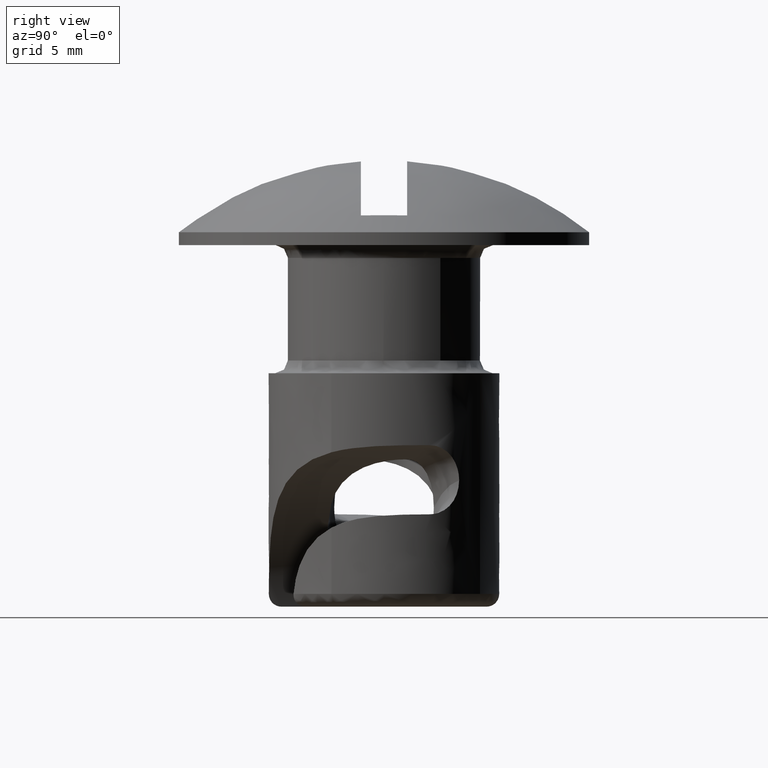
[diagram: clean part render]
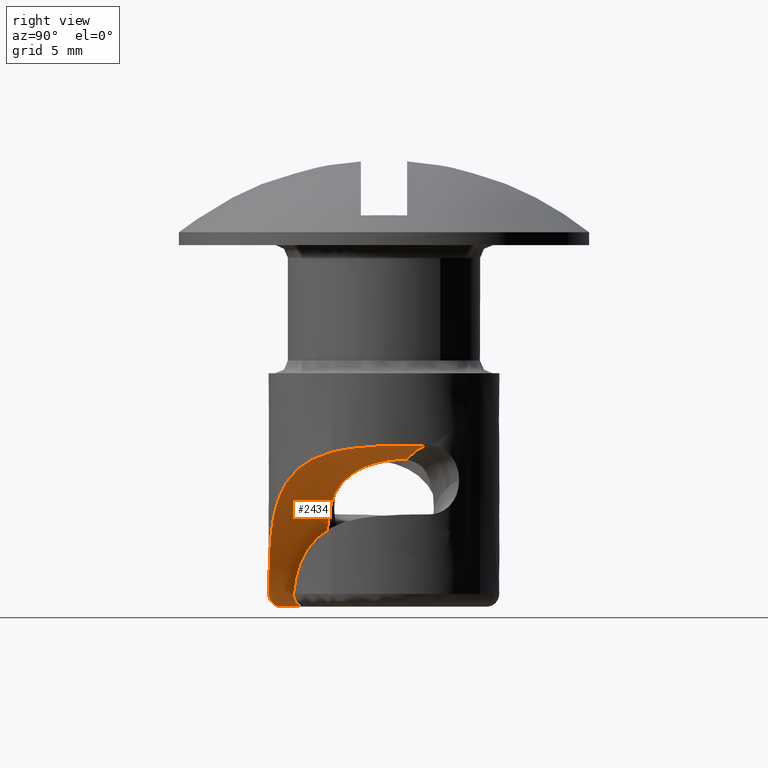
[diagram: same view with one face highlighted and labeled with its STEP entity id]
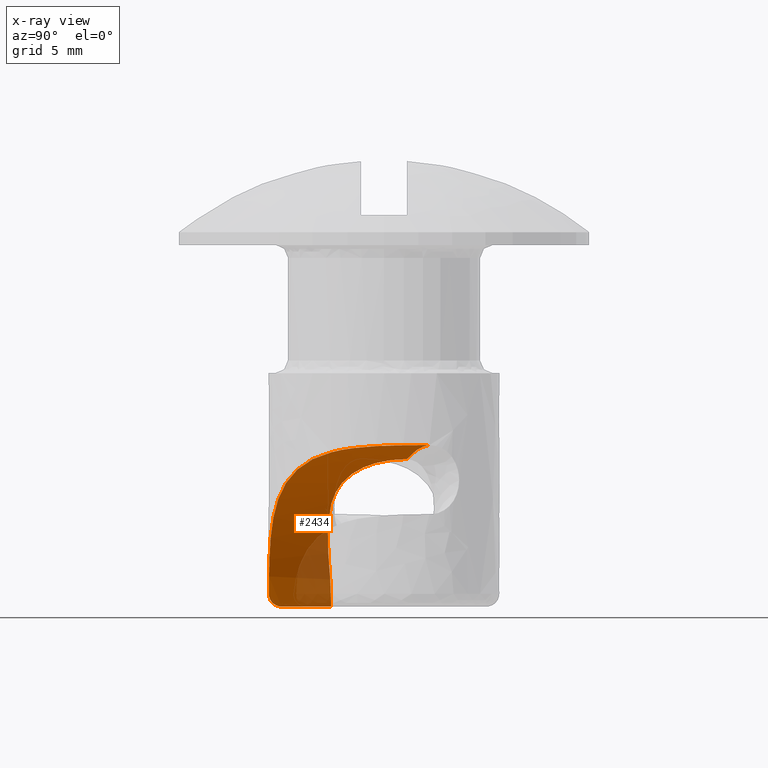
[diagram: x-ray of the same camera — body ghosted, the highlighted face saturated]
A machine part, right view. The second image highlights one B-rep face of the part: STEP entity #2434.
The next image is the same camera in x-ray: the body ghosted, the highlighted face saturated — about 20% of this face is hidden behind the body in this view.
In plain terms, the highlighted face is a freeform B-spline surface patch.
Its self-contained STEP definition (entity closure, byte-faithful):
#208=CARTESIAN_POINT('',(2.012875800871520,0.887880065248593,-8.353733664145489));
#209=VERTEX_POINT('',#208);
#241=CARTESIAN_POINT('',(1.471700788990504,-1.635285459659126,-9.278926757291547));
#242=VERTEX_POINT('',#241);
#243=CARTESIAN_POINT('',(1.471700788990504,-1.635285459659126,-9.278926757291547));
#244=CARTESIAN_POINT('',(1.529172544146371,-1.583571100679164,-9.217397976464371));
#245=CARTESIAN_POINT('',(1.585414679814820,-1.527450190644373,-9.158237553011825));
#246=CARTESIAN_POINT('',(1.664419956222351,-1.439095353031215,-9.075992662763900));
#247=CARTESIAN_POINT('',(1.688580509911740,-1.410692847844107,-9.050959814135146));
#248=CARTESIAN_POINT('',(1.735777052602418,-1.352197667999754,-9.002187476025389));
#249=CARTESIAN_POINT('',(1.758772939437098,-1.322163852563907,-8.978488599925665));
#250=CARTESIAN_POINT('',(1.825832819073200,-1.229669864629749,-8.909393111134847));
#251=CARTESIAN_POINT('',(1.867974572773827,-1.164821801354222,-8.865995460104038));
#252=CARTESIAN_POINT('',(1.946375328976329,-1.028477770864486,-8.784258393606514));
#253=CARTESIAN_POINT('',(1.982637813875718,-0.956984213985253,-8.745918431831083));
#254=CARTESIAN_POINT('',(2.031895065481118,-0.844420045177230,-8.692053360868712));
#255=CARTESIAN_POINT('',(2.047499983273391,-0.805876733850665,-8.674654137087435));
#256=CARTESIAN_POINT('',(2.076474099998848,-0.727977478810443,-8.641484473398760));
#257=CARTESIAN_POINT('',(2.089883260889936,-0.688550148506075,-8.625672722790990));
#258=CARTESIAN_POINT('',(2.151435764325225,-0.489072107158115,-8.550260327677805));
#259=CARTESIAN_POINT('',(2.183303103526015,-0.322086022917547,-8.501457459199820));
#260=CARTESIAN_POINT('',(2.197970883556443,-0.104020667407514,-8.452766255409308));
#261=CARTESIAN_POINT('',(2.199620608824777,-0.059871782729582,-8.443646865524995));
#262=CARTESIAN_POINT('',(2.200258016536838,0.027963826414833,-8.426893265857505));
#263=CARTESIAN_POINT('',(2.199262174102160,0.071821189809136,-8.419218242405764));
#264=CARTESIAN_POINT('',(2.192349142983452,0.203197816940557,-8.398174694894033));
#265=CARTESIAN_POINT('',(2.182520089598943,0.290521650997582,-8.386775886985705));
#266=CARTESIAN_POINT('',(2.159780870260663,0.421061451361819,-8.373349228057119));
#267=CARTESIAN_POINT('',(2.150865217869949,0.464500397869820,-8.369488561010494));
#268=CARTESIAN_POINT('',(2.130290875912602,0.551220186291751,-8.362987837784029));
#269=CARTESIAN_POINT('',(2.118578286018459,0.594668322137716,-8.360341314076239));
#270=CARTESIAN_POINT('',(2.079632174586845,0.723295451250563,-8.354318147241916));
#271=CARTESIAN_POINT('',(2.048676404667724,0.806717745670286,-8.352820920707234));
#272=CARTESIAN_POINT('',(2.012875800871520,0.887880065248593,-8.353733664145489));
#273=B_SPLINE_CURVE_WITH_KNOTS('',3,(#243,#244,#245,#246,#247,#248,#249,#250,#251,#252,#253,#254,#255,#256,#257,#258,#259,#260,#261,#262,#263,#264,#265,#266,#267,#268,#269,#270,#271,#272),.UNSPECIFIED.,.F.,.U.,(4,2,2,2,2,2,2,2,2,2,2,2,2,2,4),(0.652609904326967,0.687500000000002,0.703125000000003,0.718750000000003,0.750000000000003,0.781250000000003,0.796875000000002,0.812500000000002,0.875000000000002,0.890625000000001,0.906250000000001,0.937500000000001,0.953125000000001,0.968750000000000,1.0),.UNSPECIFIED.);
#274=EDGE_CURVE('',#242,#209,#273,.T.);
#377=CARTESIAN_POINT('',(-0.772819371805389,-2.059793732042685,-14.100000000000000));
#378=VERTEX_POINT('',#377);
#379=CARTESIAN_POINT('',(-0.772819371805389,-2.059793732042685,-14.100000000000000));
#380=CARTESIAN_POINT('',(-0.773075505397063,-2.059697423639558,-13.921352947093339));
#381=CARTESIAN_POINT('',(-0.763578330655057,-2.063331586259701,-13.744455376049419));
#382=CARTESIAN_POINT('',(-0.726374994902370,-2.076720145993557,-13.393884926041579));
#383=CARTESIAN_POINT('',(-0.698679166027948,-2.086450178496178,-13.220209190242009));
#384=CARTESIAN_POINT('',(-0.626519930513565,-2.109240945028564,-12.875713825805610));
#385=CARTESIAN_POINT('',(-0.582064766943404,-2.122283022144758,-12.704891956374491));
#386=CARTESIAN_POINT('',(-0.503760624189162,-2.141713783230250,-12.450518688988870));
#387=CARTESIAN_POINT('',(-0.475762429383641,-2.148150909104996,-12.366201162164700));
#388=CARTESIAN_POINT('',(-0.416568896260025,-2.160409896654604,-12.199526399267301));
#389=CARTESIAN_POINT('',(-0.385323989356559,-2.166244420746490,-12.117004680081710));
#390=CARTESIAN_POINT('',(-0.221389719056922,-2.192856837554924,-11.708202007850289));
#391=CARTESIAN_POINT('',(-0.065845619766091,-2.206029976062915,-11.393203208101561));
#392=CARTESIAN_POINT('',(0.197615124121947,-2.192863372551909,-10.935399302547800));
#393=CARTESIAN_POINT('',(0.290515027980192,-2.182983875816730,-10.785274601932811));
#394=CARTESIAN_POINT('',(0.437052185071691,-2.156713035662069,-10.563561747283259));
#395=CARTESIAN_POINT('',(0.487135580074479,-2.146017352560329,-10.490198603189700));
#396=CARTESIAN_POINT('',(0.588460066530070,-2.120472475218050,-10.346227076551520));
#397=CARTESIAN_POINT('',(0.639831194594699,-2.105604653153069,-10.275417161712831));
#398=CARTESIAN_POINT('',(0.795742999457914,-2.053956143172463,-10.066491535652411));
#399=CARTESIAN_POINT('',(0.902099264614666,-2.010194728986966,-9.931873748106808));
#400=CARTESIAN_POINT('',(1.063755421558852,-1.926668090550900,-9.736965720342360));
#401=CARTESIAN_POINT('',(1.118172915861983,-1.895714352265225,-9.672959913737182));
#402=CARTESIAN_POINT('',(1.226512966952972,-1.827486550084317,-9.548313195552531));
#403=CARTESIAN_POINT('',(1.280204104351139,-1.790377983246796,-9.487927379754893));
#404=CARTESIAN_POINT('',(1.379972122486129,-1.714373944384882,-9.377790151345298));
#405=CARTESIAN_POINT('',(1.426221462569798,-1.676209434791188,-9.327616900418526));
#406=CARTESIAN_POINT('',(1.471700788990504,-1.635285459659126,-9.278926757291547));
#407=B_SPLINE_CURVE_WITH_KNOTS('',3,(#379,#380,#381,#382,#383,#384,#385,#386,#387,#388,#389,#390,#391,#392,#393,#394,#395,#396,#397,#398,#399,#400,#401,#402,#403,#404,#405,#406),.UNSPECIFIED.,.F.,.U.,(4,2,2,2,2,2,2,2,2,2,2,2,2,4),(0.0,0.062500000000000,0.125000000000000,0.187499999999999,0.218749999999999,0.249999999999999,0.375000000000000,0.437500000000001,0.468750000000001,0.500000000000001,0.562500000000002,0.593750000000002,0.625000000000002,0.652609904326967),.UNSPECIFIED.);
#408=EDGE_CURVE('',#378,#242,#407,.T.);
#846=CARTESIAN_POINT('',(0.255835677203739,-4.492721681371959,-13.600000000000000));
#847=VERTEX_POINT('',#846);
#872=CARTESIAN_POINT('',(4.005065075704186,-2.051709767937144,-8.080848835180767));
#873=VERTEX_POINT('',#872);
#874=CARTESIAN_POINT('',(4.005065075704186,-2.051709767937144,-8.080848835180767));
#875=CARTESIAN_POINT('',(3.943339355540231,-2.172208781201602,-8.113144947599663));
#876=CARTESIAN_POINT('',(3.876542370826476,-2.289181153341390,-8.149408258224693));
#877=CARTESIAN_POINT('',(3.773771376901418,-2.451937861394224,-8.208060667503840));
#878=CARTESIAN_POINT('',(3.741695343175940,-2.500609839679293,-8.226720857588580));
#879=CARTESIAN_POINT('',(3.675744947525495,-2.596581118429168,-8.265916995026952));
#880=CARTESIAN_POINT('',(3.641864980991648,-2.643873910733617,-8.286459740476293));
#881=CARTESIAN_POINT('',(3.538770415549995,-2.782134048143959,-8.350336632007910));
#882=CARTESIAN_POINT('',(3.467737265914015,-2.870035078895143,-8.396133672970134));
#883=CARTESIAN_POINT('',(3.248839571398713,-3.121604619710936,-8.543694264999784));
#884=CARTESIAN_POINT('',(3.095194099437456,-3.273169829738833,-8.655605958177473));
#885=CARTESIAN_POINT('',(2.896700616718432,-3.444100128095720,-8.814423055904461));
#886=CARTESIAN_POINT('',(2.856587742673387,-3.477429050449810,-8.847211210471825));
#887=CARTESIAN_POINT('',(2.776286225682399,-3.541869895429823,-8.914324379953532));
#888=CARTESIAN_POINT('',(2.736130112375454,-3.572962547576958,-8.948618277696250));
#889=CARTESIAN_POINT('',(2.615756672302458,-3.663034602393186,-9.053709037260873));
#890=CARTESIAN_POINT('',(2.535635646717832,-3.718812193067187,-9.126713711165653));
#891=CARTESIAN_POINT('',(2.296475984071499,-3.874579677697017,-9.354581395973836));
#892=CARTESIAN_POINT('',(2.138642329750929,-3.963041117565401,-9.518275420727813));
#893=CARTESIAN_POINT('',(1.830239302853755,-4.114573474593702,-9.869848756944384));
#894=CARTESIAN_POINT('',(1.682891326303015,-4.176098803264428,-10.054072329922700));
#895=CARTESIAN_POINT('',(1.404562251542712,-4.277748671648064,-10.438012680990550));
#896=CARTESIAN_POINT('',(1.273438638263735,-4.317898977433959,-10.637880422209530));
#897=CARTESIAN_POINT('',(1.090497488115368,-4.366323191419717,-10.949687591106780));
#898=CARTESIAN_POINT('',(1.031811792816200,-4.380486933386094,-11.055629422759591));
#899=CARTESIAN_POINT('',(0.947481651725769,-4.399215132236809,-11.217620172876110));
#900=CARTESIAN_POINT('',(0.919951313530347,-4.405044970076399,-11.272209270167410));
#901=CARTESIAN_POINT('',(0.866446264329112,-4.415880811777237,-11.381856358812080));
#902=CARTESIAN_POINT('',(0.840450842371826,-4.420892276616048,-11.436948809802560));
#903=CARTESIAN_POINT('',(0.714287179120226,-4.444132814048572,-11.713754857265361));
#904=CARTESIAN_POINT('',(0.625528656783643,-4.456968231853296,-11.939487092789889));
#905=CARTESIAN_POINT('',(0.473566844664832,-4.475666334806666,-12.399716138667410));
#906=CARTESIAN_POINT('',(0.410362471252333,-4.481523952832765,-12.634212825447900));
#907=CARTESIAN_POINT('',(0.336222206899970,-4.487490009593309,-12.992915315149791));
#908=CARTESIAN_POINT('',(0.314924133649345,-4.489001035225286,-13.113940256524771));
#909=CARTESIAN_POINT('',(0.279805756540586,-4.491326903679411,-13.356505117554610));
#910=CARTESIAN_POINT('',(0.265953237172448,-4.492145483999236,-13.478096946448190));
#911=CARTESIAN_POINT('',(0.255835677203739,-4.492721681371959,-13.600000000000000));
#912=B_SPLINE_CURVE_WITH_KNOTS('',3,(#874,#875,#876,#877,#878,#879,#880,#881,#882,#883,#884,#885,#886,#887,#888,#889,#890,#891,#892,#893,#894,#895,#896,#897,#898,#899,#900,#901,#902,#903,#904,#905,#906,#907,#908,#909,#910,#911),.UNSPECIFIED.,.F.,.U.,(4,2,2,2,2,2,2,2,2,2,2,2,2,2,2,2,2,2,4),(0.339093433662571,0.374999999999999,0.390624999999999,0.406249999999999,0.437499999999999,0.499999999999999,0.515624999999999,0.531250000000000,0.562500000000000,0.625000000000000,0.687500000000000,0.750000000000001,0.781250000000001,0.796875000000001,0.812500000000001,0.875000000000000,0.937500000000000,0.968750000000000,1.0),.UNSPECIFIED.);
#913=EDGE_CURVE('',#873,#847,#912,.T.);
#1049=CARTESIAN_POINT('',(4.138067084196240,1.768163116539770,-7.800013149771270));
#1050=VERTEX_POINT('',#1049);
#1051=CARTESIAN_POINT('',(4.138067084196240,1.768163116539770,-7.800013149771270));
#1052=CARTESIAN_POINT('',(4.162120505831297,1.711870290030843,-7.799980991914844));
#1053=CARTESIAN_POINT('',(4.185139341385479,1.654804921017770,-7.800007838458414));
#1054=CARTESIAN_POINT('',(4.228739625134359,1.539977521871081,-7.800182341454338));
#1055=CARTESIAN_POINT('',(4.249293395797664,1.482306279991001,-7.800329579954470));
#1056=CARTESIAN_POINT('',(4.307278926738934,1.308533232924721,-7.800964565079217));
#1057=CARTESIAN_POINT('',(4.341040957026205,1.191673301936562,-7.801641199656928));
#1058=CARTESIAN_POINT('',(4.427917570751848,0.838120500450025,-7.804699100119386));
#1059=CARTESIAN_POINT('',(4.466716551187616,0.598473039878350,-7.808030665249360));
#1060=CARTESIAN_POINT('',(4.495623733761330,0.232988338331622,-7.817356912755614));
#1061=CARTESIAN_POINT('',(4.500320295707747,0.109670295700120,-7.821231235918879));
#1062=CARTESIAN_POINT('',(4.499639845996462,-0.134713072586578,-7.830923161055225));
#1063=CARTESIAN_POINT('',(4.494332577423430,-0.256172360750283,-7.836744749770561));
#1064=CARTESIAN_POINT('',(4.463892699900193,-0.618331571634758,-7.858064590406930));
#1065=CARTESIAN_POINT('',(4.424323375524259,-0.856829638191402,-7.877340128359434));
#1066=CARTESIAN_POINT('',(4.350739805403135,-1.150955042263494,-7.911841597218941));
#1067=CARTESIAN_POINT('',(4.334810474915550,-1.209578925807845,-7.919268375028099));
#1068=CARTESIAN_POINT('',(4.300499466624118,-1.326410646241067,-7.935304502542285));
#1069=CARTESIAN_POINT('',(4.282110389520763,-1.384612564755397,-7.943917819138666));
#1070=CARTESIAN_POINT('',(4.223886130358204,-1.556730211478972,-7.971423513387567));
#1071=CARTESIAN_POINT('',(4.180822676332276,-1.668787720432518,-7.992061400041185));
#1072=CARTESIAN_POINT('',(4.093715385423663,-1.871285503581427,-8.035185844950028));
#1073=CARTESIAN_POINT('',(4.050781102924933,-1.962464871369194,-8.056929274875921));
#1074=CARTESIAN_POINT('',(4.005065075704186,-2.051709767937144,-8.080848835180767));
#1075=B_SPLINE_CURVE_WITH_KNOTS('',3,(#1051,#1052,#1053,#1054,#1055,#1056,#1057,#1058,#1059,#1060,#1061,#1062,#1063,#1064,#1065,#1066,#1067,#1068,#1069,#1070,#1071,#1072,#1073,#1074),.UNSPECIFIED.,.F.,.U.,(4,2,2,2,2,2,2,2,2,2,2,4),(0.0,0.015625000000000,0.031250000000000,0.062500000000000,0.124999999999999,0.156249999999999,0.187499999999999,0.249999999999999,0.265624999999999,0.281249999999999,0.312499999999999,0.339093433662571),.UNSPECIFIED.);
#1076=EDGE_CURVE('',#1050,#873,#1075,.T.);
#2222=CARTESIAN_POINT('',(2.012875800871520,0.887880065248593,-8.353733664145489));
#2223=CARTESIAN_POINT('',(2.294571029794645,1.004562049405136,-8.215671222974059));
#2224=CARTESIAN_POINT('',(2.986462081597823,1.291152706453845,-7.946211064409225));
#2225=CARTESIAN_POINT('',(3.714772772441481,1.592828871914565,-7.821618521696377));
#2226=CARTESIAN_POINT('',(4.138067084196240,1.768163116539770,-7.800013149771270));
#2227=B_SPLINE_CURVE_WITH_KNOTS('',3,(#2222,#2223,#2224,#2225,#2226),.UNSPECIFIED.,.F.,.U.,(4,1,4),(5.695773E-010,1.004117983389891,2.380130339962011),.UNSPECIFIED.);
#2228=EDGE_CURVE('',#209,#1050,#2227,.T.);
#2383=CARTESIAN_POINT('',(-1.448380718543344,-0.422721432751549,-14.264912258832670));
#2384=CARTESIAN_POINT('',(0.380617785603739,-4.838314431533074,-14.264912258832670));
#2385=CARTESIAN_POINT('',(-1.612888629168178,-0.490862840380424,-7.743501752850516));
#2386=CARTESIAN_POINT('',(0.216109874978906,-4.906455839161953,-7.743501752850516));
#2387=CARTESIAN_POINT('',(4.414180038795257,2.005630740694371,-7.793142088587252));
#2388=CARTESIAN_POINT('',(6.243178542942340,-2.409962258087159,-7.793142088587251));
#2396=(BOUNDED_SURFACE()B_SPLINE_SURFACE(1,2,((#2383,#2385,#2387),(#2384,#2386,#2388)),.UNSPECIFIED.,.F.,.F.,.U.)B_SPLINE_SURFACE_WITH_KNOTS((2,2),(3,3),(0.0,4.779403420832011),(0.0,10.696765368482041),.UNSPECIFIED.)GEOMETRIC_REPRESENTATION_ITEM()RATIONAL_B_SPLINE_SURFACE(((1.0,0.694658370458997,1.0),(1.0,0.694658370458997,1.0)))REPRESENTATION_ITEM('')SURFACE());
#2397=ORIENTED_EDGE('',*,*,#408,.T.);
#2398=ORIENTED_EDGE('',*,*,#274,.T.);
#2399=ORIENTED_EDGE('',*,*,#2228,.T.);
#2400=ORIENTED_EDGE('',*,*,#1076,.T.);
#2401=ORIENTED_EDGE('',*,*,#913,.T.);
#2402=CARTESIAN_POINT('',(0.030791286977417,-3.999881485325070,-14.100000000000000));
#2403=VERTEX_POINT('',#2402);
#2404=CARTESIAN_POINT('',(0.255835677203739,-4.492721681371959,-13.600000000000000));
#2405=CARTESIAN_POINT('',(0.252994784519830,-4.492883454514208,-13.634228709476860));
#2406=CARTESIAN_POINT('',(0.249098204039346,-4.489619777298074,-13.667765084831290));
#2407=CARTESIAN_POINT('',(0.239273137615047,-4.476621532452519,-13.733524811676331));
#2408=CARTESIAN_POINT('',(0.233255437557800,-4.466707678603228,-13.766096835535031));
#2409=CARTESIAN_POINT('',(0.219494394031670,-4.441045069627468,-13.827574710866950));
#2410=CARTESIAN_POINT('',(0.211765500974590,-4.425365662892158,-13.856586920983791));
#2411=CARTESIAN_POINT('',(0.198824569795881,-4.397677593459395,-13.897549877140300));
#2412=CARTESIAN_POINT('',(0.194260459212280,-4.387693549381869,-13.910832596126660));
#2413=CARTESIAN_POINT('',(0.184835555705031,-4.366712026077105,-13.936026175337920));
#2414=CARTESIAN_POINT('',(0.179962766335685,-4.355690904373765,-13.947986242169160));
#2415=CARTESIAN_POINT('',(0.164852847782283,-4.321099029849077,-13.982017785988180));
#2416=CARTESIAN_POINT('',(0.154094852595222,-4.295933484567988,-14.002308032155000));
#2417=CARTESIAN_POINT('',(0.131260464118774,-4.241877389090676,-14.037697268582461));
#2418=CARTESIAN_POINT('',(0.119466997335867,-4.213661440715502,-14.052378627561771));
#2419=CARTESIAN_POINT('',(0.095067859495999,-4.155039120186649,-14.076074351253251));
#2420=CARTESIAN_POINT('',(0.082335389200381,-4.124324898593821,-14.085129491477780));
#2421=CARTESIAN_POINT('',(0.056678608778126,-4.062393181831449,-14.097059006772250));
#2422=CARTESIAN_POINT('',(0.043776522898092,-4.031230618026931,-14.100000000000060));
#2423=CARTESIAN_POINT('',(0.030791286977417,-3.999881485325070,-14.100000000000000));
#2424=B_SPLINE_CURVE_WITH_KNOTS('',3,(#2404,#2405,#2406,#2407,#2408,#2409,#2410,#2411,#2412,#2413,#2414,#2415,#2416,#2417,#2418,#2419,#2420,#2421,#2422,#2423),.UNSPECIFIED.,.F.,.U.,(4,2,2,2,2,2,2,2,2,4),(0.0,0.124999999999998,0.249999999999996,0.374999999999994,0.437499999999995,0.499999999999997,0.624999999999997,0.749999999999998,0.874999999999999,1.0),.UNSPECIFIED.);
#2425=EDGE_CURVE('',#847,#2403,#2424,.T.);
#2426=ORIENTED_EDGE('',*,*,#2425,.T.);
#2427=CARTESIAN_POINT('',(-0.772819371805389,-2.059793732042685,-14.100000000000000));
#2428=CARTESIAN_POINT('',(0.030791286977417,-3.999881485325070,-14.100000000000000));
#2429=QUASI_UNIFORM_CURVE('',1,(#2427,#2428),.UNSPECIFIED.,.F.,.U.);
#2430=EDGE_CURVE('',#378,#2403,#2429,.T.);
#2431=ORIENTED_EDGE('',*,*,#2430,.F.);
#2432=EDGE_LOOP('',(#2397,#2398,#2399,#2400,#2401,#2426,#2431));
#2433=FACE_OUTER_BOUND('',#2432,.T.);
#2434=ADVANCED_FACE('',(#2433),#2396,.F.);